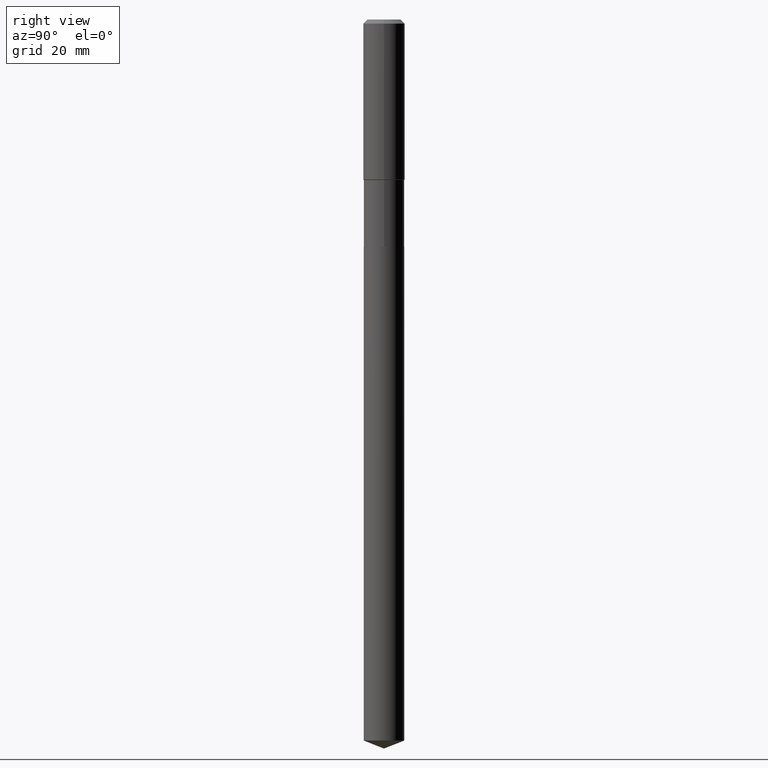
[diagram: clean part render]
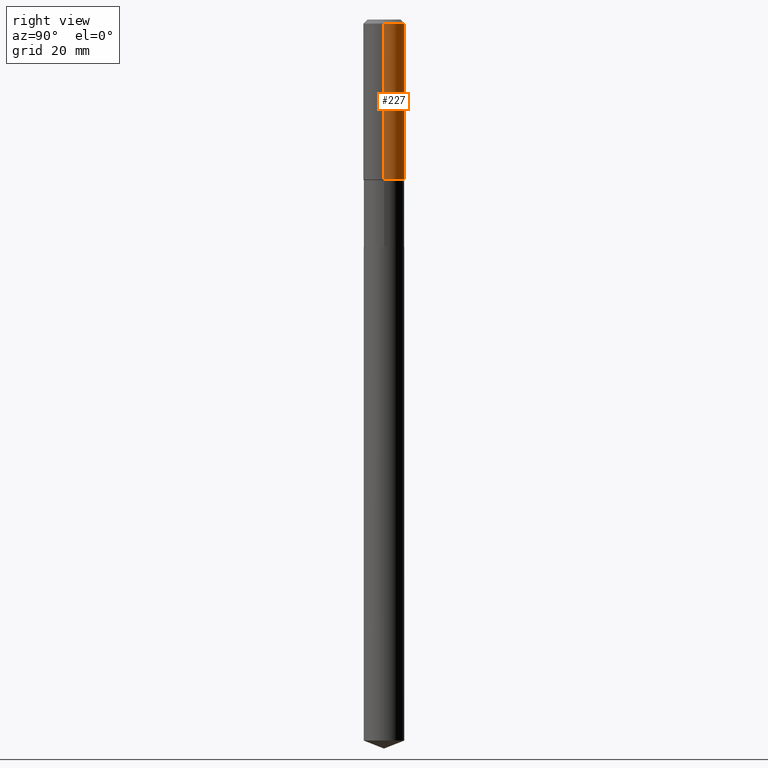
[diagram: same view with one face highlighted and labeled with its STEP entity id]
A machine part, right view. The second image highlights one B-rep face of the part: STEP entity #227.
In plain terms, the highlighted cylindrical surface (edge-blend (fillet) strip) has radius 5.9995 mm, axis along (-0, 0, 1).
Its self-contained STEP definition (entity closure, byte-faithful):
#25 = DIRECTION ( 'NONE',  ( -2.445468806185136877E-29, 3.491481338843145188E-15, 1.000000000000000000 ) ) ;
#30 = EDGE_CURVE ( 'NONE', #386, #345, #470, .T. ) ;
#36 = DIRECTION ( 'NONE',  ( -2.445468806185136597E-29, 3.491481338843145583E-15, 1.000000000000000000 ) ) ;
#38 = DIRECTION ( 'NONE',  ( -2.445468806185136597E-29, 3.491481338843145583E-15, 1.000000000000000000 ) ) ;
#40 = CARTESIAN_POINT ( 'NONE',  ( -0.2362000000000002431, -4.658736688134951629E-15, -1.814999999999999947 ) ) ;
#60 = LINE ( 'NONE', #362, #91 ) ;
#63 = LINE ( 'NONE', #397, #343 ) ;
#88 = CARTESIAN_POINT ( 'NONE',  ( 1.155239464041866207E-30, -1.649375784469512845E-16, -0.04724000000000030952 ) ) ;
#91 = VECTOR ( 'NONE', #202, 39.37007874015748143 ) ;
#96 = DIRECTION ( 'NONE',  ( 1.000000000000000000, -6.982962677686266711E-15, 4.876176775795936353E-29 ) ) ;
#99 = DIRECTION ( 'NONE',  ( -2.445468806185136597E-29, 3.491481338843145583E-15, 1.000000000000000000 ) ) ;
#105 = CARTESIAN_POINT ( 'NONE',  ( 0.2362000000000000210, -1.814313362916447834E-15, -0.04724000000000030952 ) ) ;
#114 = VERTEX_POINT ( 'NONE', #237 ) ;
#125 = DIRECTION ( 'NONE',  ( 1.000000000000000000, -6.982962677686267499E-15, 0.000000000000000000 ) ) ;
#130 = CYLINDRICAL_SURFACE ( 'NONE', #486, 0.2362000000000001321 ) ;
#142 = DIRECTION ( 'NONE',  ( 1.000000000000000000, -6.982962677686265922E-15, 0.000000000000000000 ) ) ;
#175 = ORIENTED_EDGE ( 'NONE', *, *, #384, .T. ) ;
#190 = ORIENTED_EDGE ( 'NONE', *, *, #434, .F. ) ;
#202 = DIRECTION ( 'NONE',  ( -2.445468806185136877E-29, 3.491481338843145188E-15, 1.000000000000000000 ) ) ;
#205 = AXIS2_PLACEMENT_3D ( 'NONE', #298, #38, #142 ) ;
#227 = ADVANCED_FACE ( 'NONE', ( #389 ), #130, .T. ) ;
#228 = CIRCLE ( 'NONE', #205, 0.2362000000000002431 ) ;
#237 = CARTESIAN_POINT ( 'NONE',  ( 0.2362000000000002431, -7.986414414469806915E-15, -1.814999999999999947 ) ) ;
#275 = CARTESIAN_POINT ( 'NONE',  ( 0.000000000000000000, 0.000000000000000000, 0.000000000000000000 ) ) ;
#298 = CARTESIAN_POINT ( 'NONE',  ( 4.438525883226022968E-29, -6.337038630000308812E-15, -1.814999999999999947 ) ) ;
#311 = AXIS2_PLACEMENT_3D ( 'NONE', #88, #36, #125 ) ;
#326 = VERTEX_POINT ( 'NONE', #40 ) ;
#343 = VECTOR ( 'NONE', #25, 39.37007874015748143 ) ;
#345 = VERTEX_POINT ( 'NONE', #403 ) ;
#362 = CARTESIAN_POINT ( 'NONE',  ( -0.2362000000000001321, 1.678301941865357577E-15, -1.161852468318209457E-29 ) ) ;
#365 = EDGE_LOOP ( 'NONE', ( #381, #175, #398, #190 ) ) ;
#381 = ORIENTED_EDGE ( 'NONE', *, *, #489, .T. ) ;
#384 = EDGE_CURVE ( 'NONE', #326, #345, #60, .T. ) ;
#386 = VERTEX_POINT ( 'NONE', #105 ) ;
#389 = FACE_OUTER_BOUND ( 'NONE', #365, .T. ) ;
#397 = CARTESIAN_POINT ( 'NONE',  ( 0.2362000000000001321, -1.649375784469497117E-15, 1.151752954443000789E-29 ) ) ;
#398 = ORIENTED_EDGE ( 'NONE', *, *, #30, .F. ) ;
#403 = CARTESIAN_POINT ( 'NONE',  ( -0.2362000000000000210, -1.572686162358272483E-15, -0.04724000000000030952 ) ) ;
#434 = EDGE_CURVE ( 'NONE', #114, #386, #63, .T. ) ;
#470 = CIRCLE ( 'NONE', #311, 0.2362000000000000210 ) ;
#486 = AXIS2_PLACEMENT_3D ( 'NONE', #275, #99, #96 ) ;
#489 = EDGE_CURVE ( 'NONE', #114, #326, #228, .T. ) ;